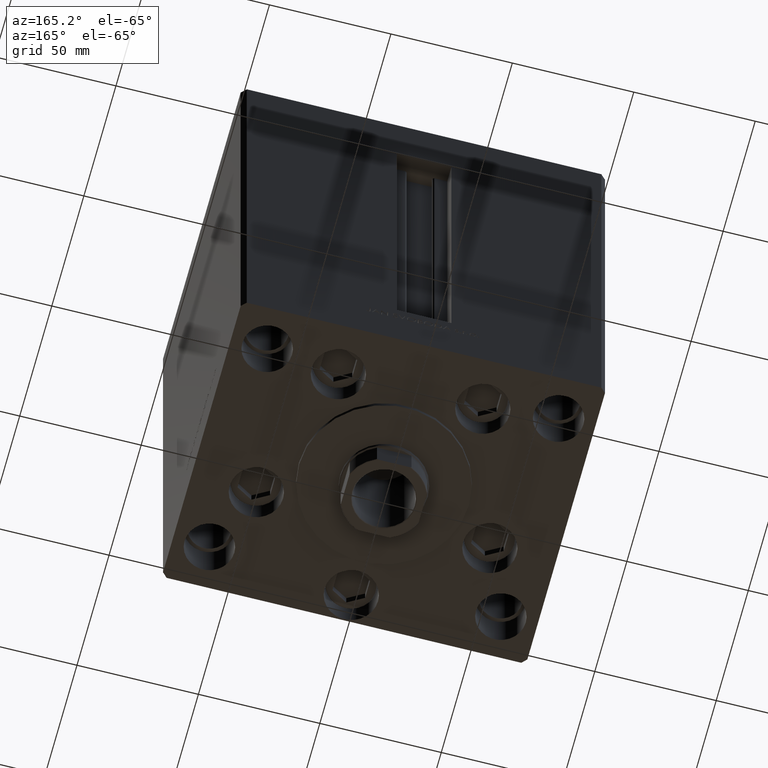
[diagram: clean part render]
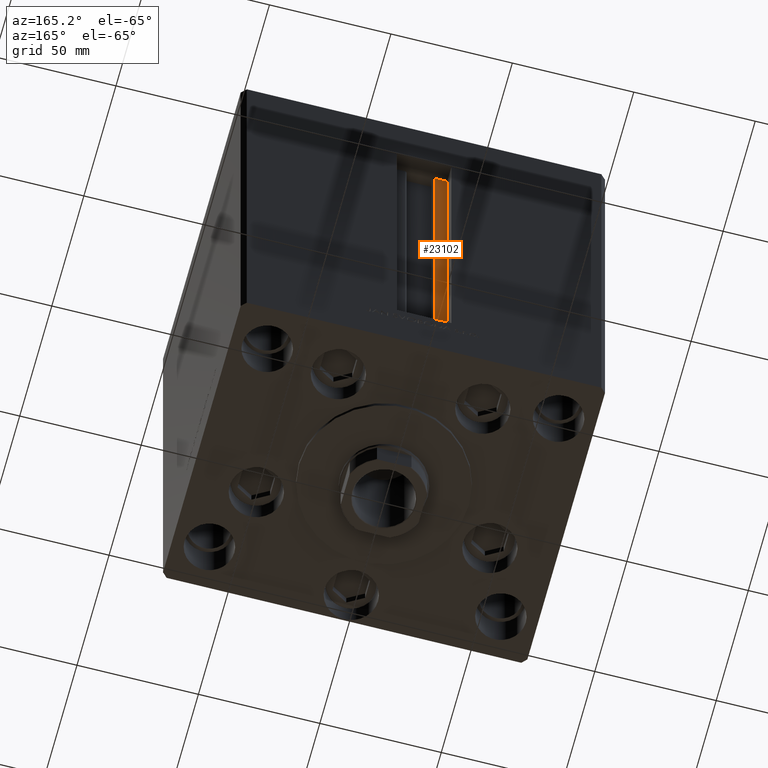
[diagram: same view with one face highlighted and labeled with its STEP entity id]
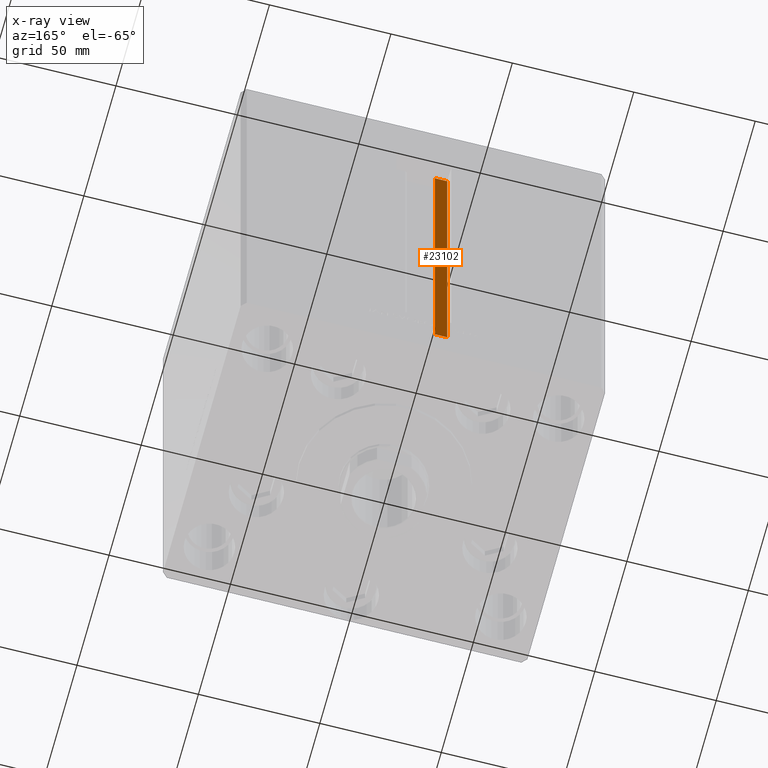
[diagram: x-ray of the same camera — body ghosted, the highlighted face saturated]
A machine part, auxiliary view. The second image highlights one B-rep face of the part: STEP entity #23102.
The next image is the same camera in x-ray: the body ghosted, the highlighted face saturated — about 0% of this face is hidden behind the body in this view.
In plain terms, the highlighted planar face has unit normal (0, -1, 0).
Its self-contained STEP definition (entity closure, byte-faithful):
#1342 = VERTEX_POINT ( 'NONE', #34400 ) ;
#3871 = CARTESIAN_POINT ( 'NONE',  ( -6.183333333334001480, 55.99999999999999289, 147.0000000000000000 ) ) ;
#9868 = EDGE_CURVE ( 'NONE', #46349, #1342, #43725, .T. ) ;
#10226 = VECTOR ( 'NONE', #34645, 1000.000000000000000 ) ;
#10327 = PLANE ( 'NONE',  #22231 ) ;
#10615 = DIRECTION ( 'NONE',  ( -0.000000000000000000, -0.000000000000000000, 1.000000000000000000 ) ) ;
#13049 = LINE ( 'NONE', #20241, #39911 ) ;
#13803 = DIRECTION ( 'NONE',  ( 0.000000000000000000, -1.000000000000000000, -0.000000000000000000 ) ) ;
#14355 = EDGE_CURVE ( 'NONE', #39330, #27397, #44522, .T. ) ;
#15955 = EDGE_LOOP ( 'NONE', ( #24833, #25541, #48280, #22062 ) ) ;
#17375 = EDGE_CURVE ( 'NONE', #27397, #1342, #43480, .T. ) ;
#17549 = CARTESIAN_POINT ( 'NONE',  ( -6.183333333334001480, 55.99999999999999289, 0.000000000000000000 ) ) ;
#17740 = CARTESIAN_POINT ( 'NONE',  ( -11.25000000000000178, 55.99999999999999289, 0.000000000000000000 ) ) ;
#17771 = DIRECTION ( 'NONE',  ( 0.000000000000000000, 0.000000000000000000, -1.000000000000000000 ) ) ;
#20241 = CARTESIAN_POINT ( 'NONE',  ( -6.183333333334001480, 55.99999999999999289, 0.000000000000000000 ) ) ;
#22062 = ORIENTED_EDGE ( 'NONE', *, *, #17375, .F. ) ;
#22231 = AXIS2_PLACEMENT_3D ( 'NONE', #32609, #13803, #17771 ) ;
#23102 = ADVANCED_FACE ( 'NONE', ( #43279 ), #10327, .F. ) ;
#24833 = ORIENTED_EDGE ( 'NONE', *, *, #14355, .F. ) ;
#25541 = ORIENTED_EDGE ( 'NONE', *, *, #48361, .F. ) ;
#27397 = VERTEX_POINT ( 'NONE', #3871 ) ;
#27659 = DIRECTION ( 'NONE',  ( 1.000000000000000000, -0.000000000000000000, -0.000000000000000000 ) ) ;
#32143 = VECTOR ( 'NONE', #32577, 1000.000000000000000 ) ;
#32577 = DIRECTION ( 'NONE',  ( -0.000000000000000000, -0.000000000000000000, 1.000000000000000000 ) ) ;
#32609 = CARTESIAN_POINT ( 'NONE',  ( -6.183333333334001480, 55.99999999999999289, 0.000000000000000000 ) ) ;
#34400 = CARTESIAN_POINT ( 'NONE',  ( -11.25000000000000178, 55.99999999999999289, 147.0000000000000000 ) ) ;
#34557 = CARTESIAN_POINT ( 'NONE',  ( -6.183333333334001480, 55.99999999999999289, 0.000000000000000000 ) ) ;
#34645 = DIRECTION ( 'NONE',  ( -1.000000000000000000, 0.000000000000000000, 0.000000000000000000 ) ) ;
#35804 = CARTESIAN_POINT ( 'NONE',  ( 0.000000000000000000, 55.99999999999999289, 147.0000000000000000 ) ) ;
#36911 = CARTESIAN_POINT ( 'NONE',  ( -11.25000000000000178, 55.99999999999999289, 0.000000000000000000 ) ) ;
#39330 = VERTEX_POINT ( 'NONE', #34557 ) ;
#39911 = VECTOR ( 'NONE', #27659, 1000.000000000000000 ) ;
#43279 = FACE_OUTER_BOUND ( 'NONE', #15955, .T. ) ;
#43480 = LINE ( 'NONE', #35804, #10226 ) ;
#43725 = LINE ( 'NONE', #17740, #32143 ) ;
#44522 = LINE ( 'NONE', #17549, #48065 ) ;
#46349 = VERTEX_POINT ( 'NONE', #36911 ) ;
#48065 = VECTOR ( 'NONE', #10615, 1000.000000000000000 ) ;
#48280 = ORIENTED_EDGE ( 'NONE', *, *, #9868, .T. ) ;
#48361 = EDGE_CURVE ( 'NONE', #46349, #39330, #13049, .T. ) ;